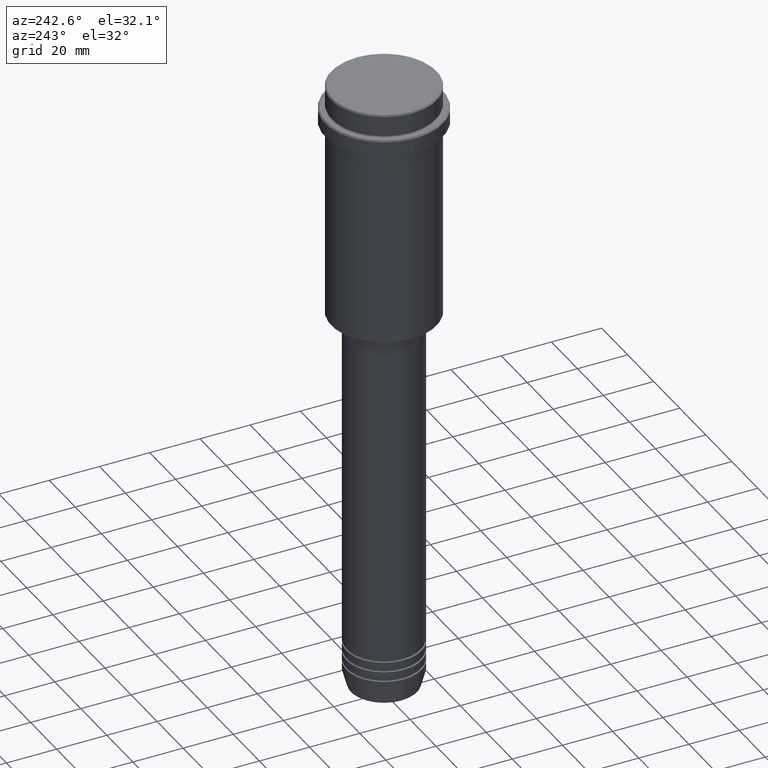
[diagram: clean part render]
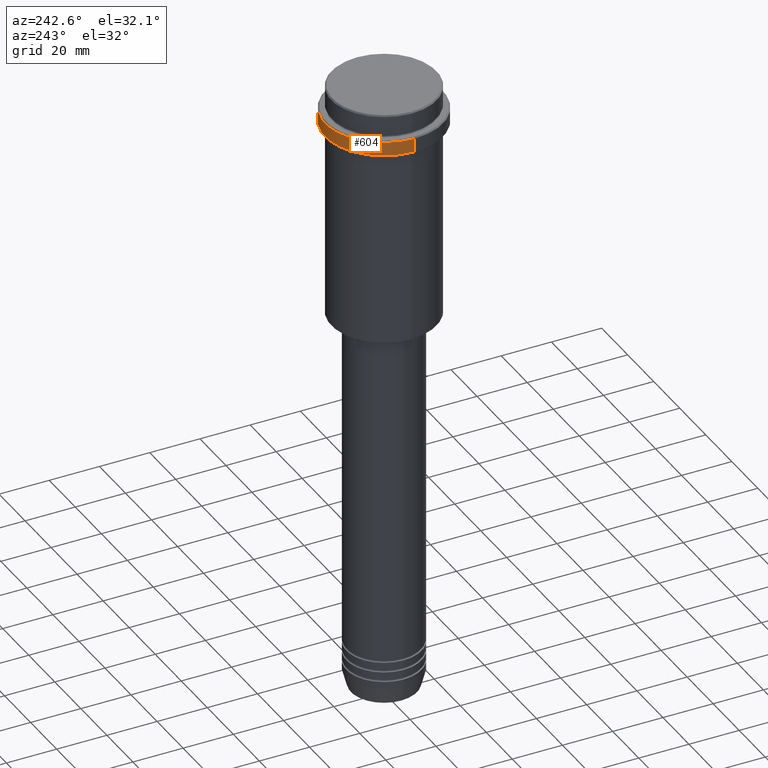
[diagram: same view with one face highlighted and labeled with its STEP entity id]
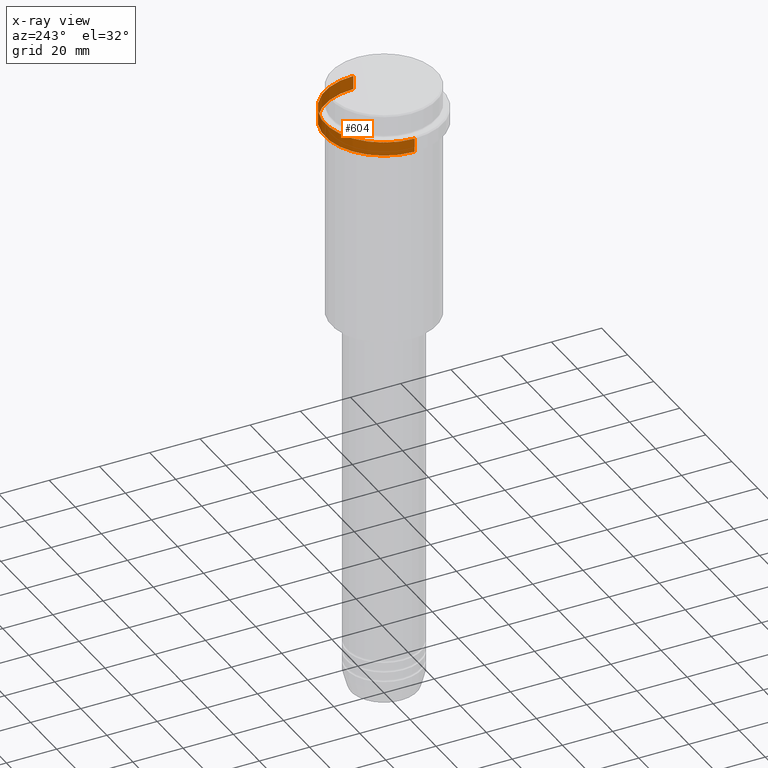
[diagram: x-ray of the same camera — body ghosted, the highlighted face saturated]
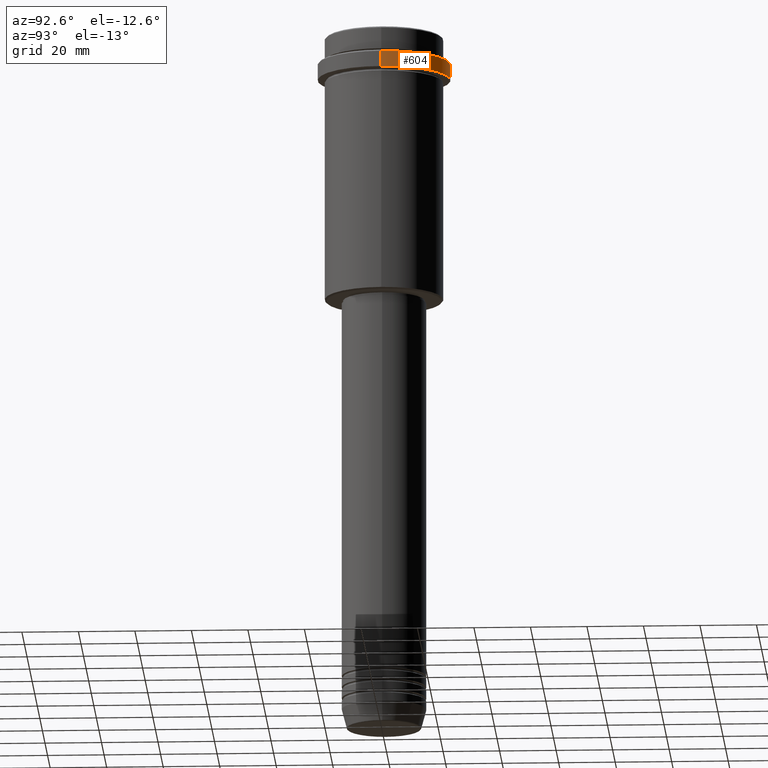
[diagram: same view with one face highlighted and labeled with its STEP entity id]
A machine part, auxiliary view. The second image highlights one B-rep face of the part: STEP entity #604.
The next image is the same camera in x-ray: the body ghosted, the highlighted face saturated — about 0% of this face is hidden behind the body in this view.
A second angle (auxiliary view) of the same face is appended — the face is thin or edge-on in the first view.
In plain terms, the highlighted cylindrical surface (partial cylindrical patch) has radius 23.5 mm, axis along (-0, -0, 1).
Its self-contained STEP definition (entity closure, byte-faithful):
#39 = DIRECTION ( 'NONE',  ( 0.000000000000000000, 0.000000000000000000, -1.000000000000000000 ) ) ;
#45 = VECTOR ( 'NONE', #193, 1000.000000000000000 ) ;
#66 = EDGE_CURVE ( 'NONE', #1218, #545, #152, .T. ) ;
#93 = DIRECTION ( 'NONE',  ( -0.000000000000000000, -0.000000000000000000, 1.000000000000000000 ) ) ;
#122 = CARTESIAN_POINT ( 'NONE',  ( -23.50000000000000000, 2.877919977996280320E-15, -9.499999999999944933 ) ) ;
#129 = EDGE_CURVE ( 'NONE', #1372, #545, #1059, .T. ) ;
#152 = LINE ( 'NONE', #605, #618 ) ;
#183 = ORIENTED_EDGE ( 'NONE', *, *, #66, .F. ) ;
#193 = DIRECTION ( 'NONE',  ( -0.000000000000000000, -0.000000000000000000, 1.000000000000000000 ) ) ;
#232 = CIRCLE ( 'NONE', #437, 23.50000000000000355 ) ;
#267 = FACE_OUTER_BOUND ( 'NONE', #288, .T. ) ;
#288 = EDGE_LOOP ( 'NONE', ( #704, #1066, #401, #183 ) ) ;
#398 = DIRECTION ( 'NONE',  ( 1.000000000000000000, 0.000000000000000000, 0.000000000000000000 ) ) ;
#401 = ORIENTED_EDGE ( 'NONE', *, *, #129, .T. ) ;
#437 = AXIS2_PLACEMENT_3D ( 'NONE', #441, #93, #526 ) ;
#441 = CARTESIAN_POINT ( 'NONE',  ( 0.000000000000000000, 0.000000000000000000, -15.00000000000000000 ) ) ;
#468 = CARTESIAN_POINT ( 'NONE',  ( 23.50000000000000000, 0.000000000000000000, -9.499999999999944933 ) ) ;
#483 = CARTESIAN_POINT ( 'NONE',  ( 0.000000000000000000, 0.000000000000000000, -9.499999999999944933 ) ) ;
#505 = CARTESIAN_POINT ( 'NONE',  ( 0.000000000000000000, 0.000000000000000000, 0.000000000000000000 ) ) ;
#517 = CARTESIAN_POINT ( 'NONE',  ( -23.50000000000000000, 2.877919977996280320E-15, 0.000000000000000000 ) ) ;
#526 = DIRECTION ( 'NONE',  ( 1.000000000000000000, 0.000000000000000000, 0.000000000000000000 ) ) ;
#545 = VERTEX_POINT ( 'NONE', #468 ) ;
#604 = ADVANCED_FACE ( 'NONE', ( #267 ), #1250, .T. ) ;
#605 = CARTESIAN_POINT ( 'NONE',  ( 23.50000000000000000, 0.000000000000000000, 0.000000000000000000 ) ) ;
#618 = VECTOR ( 'NONE', #930, 1000.000000000000000 ) ;
#624 = VERTEX_POINT ( 'NONE', #747 ) ;
#657 = CARTESIAN_POINT ( 'NONE',  ( 23.50000000000000355, 0.000000000000000000, -15.00000000000000000 ) ) ;
#662 = EDGE_CURVE ( 'NONE', #624, #1372, #828, .T. ) ;
#674 = AXIS2_PLACEMENT_3D ( 'NONE', #505, #1259, #398 ) ;
#694 = DIRECTION ( 'NONE',  ( 1.000000000000000000, 0.000000000000000000, 0.000000000000000000 ) ) ;
#704 = ORIENTED_EDGE ( 'NONE', *, *, #843, .T. ) ;
#747 = CARTESIAN_POINT ( 'NONE',  ( -23.50000000000000711, 2.877919977996281109E-15, -15.00000000000000000 ) ) ;
#828 = LINE ( 'NONE', #517, #45 ) ;
#843 = EDGE_CURVE ( 'NONE', #1218, #624, #232, .T. ) ;
#930 = DIRECTION ( 'NONE',  ( -0.000000000000000000, -0.000000000000000000, 1.000000000000000000 ) ) ;
#1059 = CIRCLE ( 'NONE', #1374, 23.50000000000000000 ) ;
#1066 = ORIENTED_EDGE ( 'NONE', *, *, #662, .T. ) ;
#1218 = VERTEX_POINT ( 'NONE', #657 ) ;
#1250 = CYLINDRICAL_SURFACE ( 'NONE', #674, 23.50000000000000000 ) ;
#1259 = DIRECTION ( 'NONE',  ( -0.000000000000000000, -0.000000000000000000, 1.000000000000000000 ) ) ;
#1372 = VERTEX_POINT ( 'NONE', #122 ) ;
#1374 = AXIS2_PLACEMENT_3D ( 'NONE', #483, #39, #694 ) ;